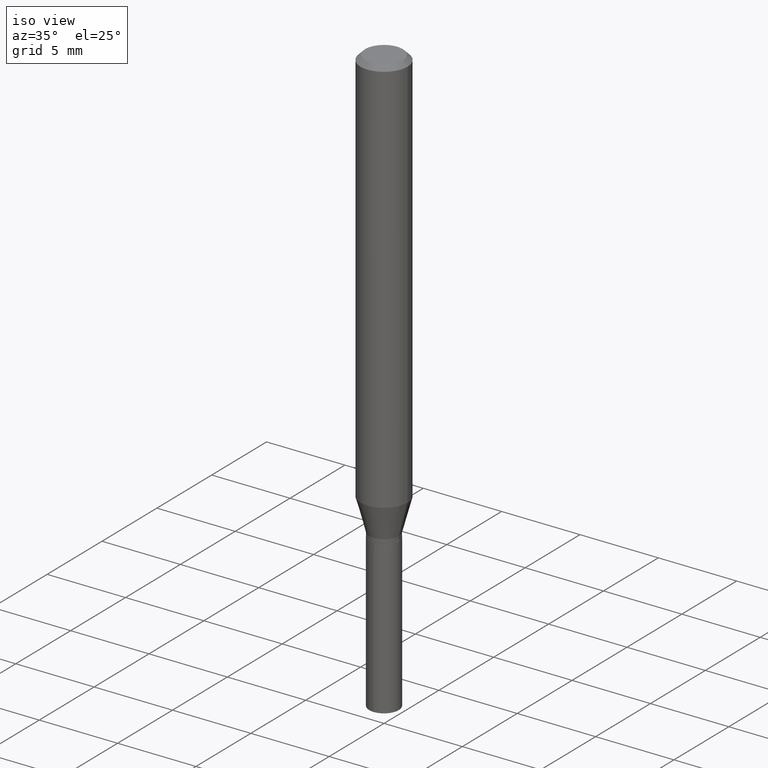
[diagram: clean part render]
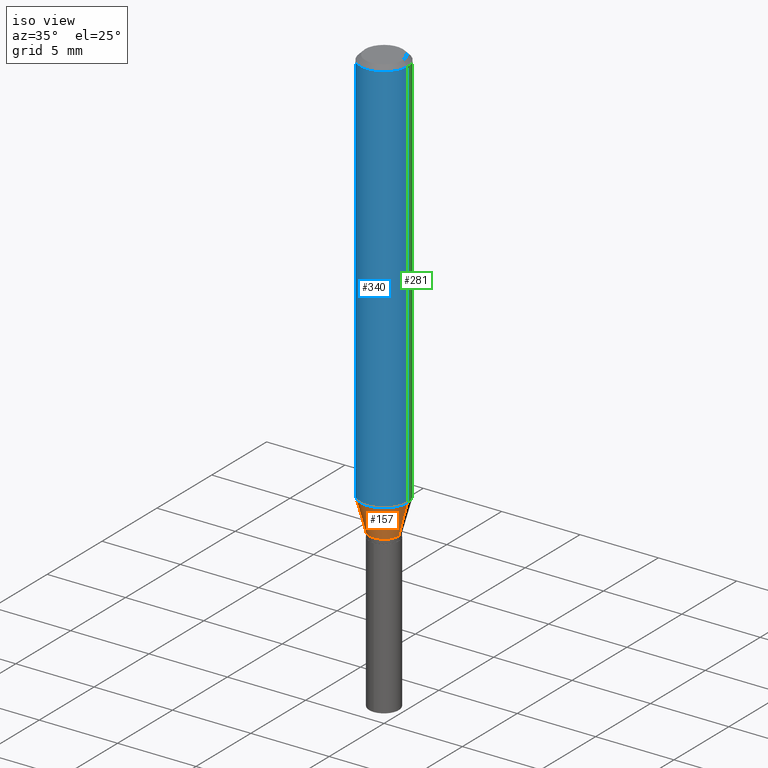
[diagram: same view with three faces highlighted in distinct colors, each labeled with its STEP entity id]
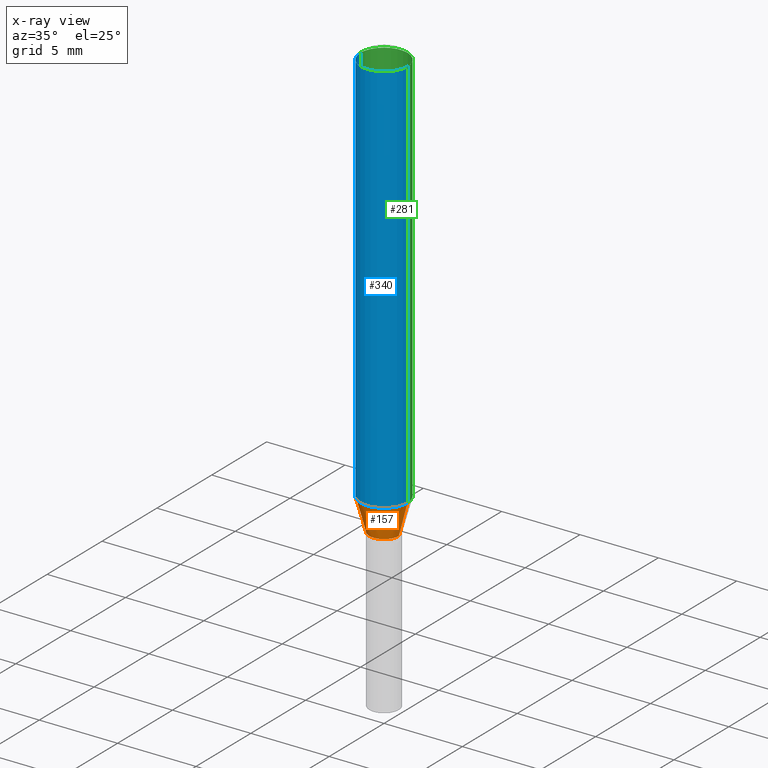
[diagram: x-ray of the same camera — body ghosted, the three highlighted faces saturated]
A machine part, iso view with three faces highlighted in distinct colors.
The next image is the same camera in x-ray (body ghosted, the three faces saturated) — at least one of them is partly hidden behind the body in this view.
Their STEP definitions:

[orange] entity #157 — the highlighted conical surface has half-angle 15 deg.
#6 = VECTOR ( 'NONE', #11, 39.37007874015748854 ) ;
#9 = CARTESIAN_POINT ( 'NONE',  ( -0.03719999999999999696, -3.517999836666022170E-15, -1.083299999999999930 ) ) ;
#11 = DIRECTION ( 'NONE',  ( -0.2588190451025212391, 5.211531920934549464E-15, 0.9659258262890679791 ) ) ;
#13 = CARTESIAN_POINT ( 'NONE',  ( 0.03719999999999999696, -4.042087945978708713E-15, -1.083299999999999930 ) ) ;
#15 = AXIS2_PLACEMENT_3D ( 'NONE', #268, #205, #431 ) ;
#28 = FACE_OUTER_BOUND ( 'NONE', #394, .T. ) ;
#50 = DIRECTION ( 'NONE',  ( -2.445468806185136597E-29, 3.491481338843145583E-15, 1.000000000000000000 ) ) ;
#51 = CONICAL_SURFACE ( 'NONE', #146, 0.03719999999999999696, 0.2617993877991499629 ) ;
#104 = EDGE_CURVE ( 'NONE', #416, #359, #442, .T. ) ;
#106 = VERTEX_POINT ( 'NONE', #13 ) ;
#146 = AXIS2_PLACEMENT_3D ( 'NONE', #169, #219, #376 ) ;
#153 = VERTEX_POINT ( 'NONE', #213 ) ;
#157 = ADVANCED_FACE ( 'NONE', ( #28 ), #51, .T. ) ;
#162 = ORIENTED_EDGE ( 'NONE', *, *, #386, .T. ) ;
#169 = CARTESIAN_POINT ( 'NONE',  ( 2.649176357740358198E-29, -3.782321734368779516E-15, -1.083299999999999930 ) ) ;
#187 = ORIENTED_EDGE ( 'NONE', *, *, #378, .F. ) ;
#195 = LINE ( 'NONE', #9, #6 ) ;
#205 = DIRECTION ( 'NONE',  ( -2.445468806185136597E-29, 3.491481338843145583E-15, 1.000000000000000000 ) ) ;
#213 = CARTESIAN_POINT ( 'NONE',  ( -0.03719999999999999696, -3.536679261828832652E-15, -1.083299999999999930 ) ) ;
#219 = DIRECTION ( 'NONE',  ( -2.445468806185136597E-29, 3.491481338843145583E-15, 1.000000000000000000 ) ) ;
#230 = CIRCLE ( 'NONE', #277, 0.03719999999999999696 ) ;
#249 = ORIENTED_EDGE ( 'NONE', *, *, #426, .T. ) ;
#251 = CARTESIAN_POINT ( 'NONE',  ( 0.05905000000000011628, -3.909951751843382594E-15, -1.001754689854619684 ) ) ;
#266 = VECTOR ( 'NONE', #315, 39.37007874015748854 ) ;
#268 = CARTESIAN_POINT ( 'NONE',  ( 2.449759845489138427E-29, -3.497607805726007280E-15, -1.001754689854619684 ) ) ;
#272 = DIRECTION ( 'NONE',  ( 1.000000000000000000, -6.982962677686265133E-15, 0.000000000000000000 ) ) ;
#277 = AXIS2_PLACEMENT_3D ( 'NONE', #278, #50, #272 ) ;
#278 = CARTESIAN_POINT ( 'NONE',  ( 2.649176357740358198E-29, -3.782321734368779516E-15, -1.083299999999999930 ) ) ;
#308 = CARTESIAN_POINT ( 'NONE',  ( 0.03719999999999999696, -4.042087945978708713E-15, -1.083299999999999930 ) ) ;
#315 = DIRECTION ( 'NONE',  ( 0.2588190451025212391, 1.565188264969622362E-15, 0.9659258262890679791 ) ) ;
#359 = VERTEX_POINT ( 'NONE', #251 ) ;
#376 = DIRECTION ( 'NONE',  ( 1.000000000000000000, -6.982962677686265133E-15, 0.000000000000000000 ) ) ;
#378 = EDGE_CURVE ( 'NONE', #153, #416, #195, .T. ) ;
#386 = EDGE_CURVE ( 'NONE', #106, #359, #469, .T. ) ;
#388 = ORIENTED_EDGE ( 'NONE', *, *, #104, .F. ) ;
#394 = EDGE_LOOP ( 'NONE', ( #187, #249, #162, #388 ) ) ;
#416 = VERTEX_POINT ( 'NONE', #464 ) ;
#426 = EDGE_CURVE ( 'NONE', #153, #106, #230, .T. ) ;
#431 = DIRECTION ( 'NONE',  ( 1.000000000000000000, -6.982962677686266711E-15, 0.000000000000000000 ) ) ;
#442 = CIRCLE ( 'NONE', #15, 0.05905000000000011628 ) ;
#464 = CARTESIAN_POINT ( 'NONE',  ( -0.05905000000000011628, -3.078032320259667392E-15, -1.001754689854619684 ) ) ;
#469 = LINE ( 'NONE', #308, #266 ) ;

[blue] entity #340 — the highlighted cylindrical surface (edge-blend (fillet) strip) has radius 1.4999 mm, axis along (-0, 0, 1).
#5 = DIRECTION ( 'NONE',  ( 1.000000000000000000, -6.982962677686266711E-15, 4.876176775795935793E-29 ) ) ;
#15 = AXIS2_PLACEMENT_3D ( 'NONE', #268, #205, #431 ) ;
#22 = AXIS2_PLACEMENT_3D ( 'NONE', #472, #368, #135 ) ;
#26 = CARTESIAN_POINT ( 'NONE',  ( -0.05904999999999999832, -1.349845614702532222E-15, -0.01181000000000006871 ) ) ;
#40 = CYLINDRICAL_SURFACE ( 'NONE', #311, 0.05905000000000006077 ) ;
#56 = EDGE_LOOP ( 'NONE', ( #382, #428, #117, #471 ) ) ;
#97 = DIRECTION ( 'NONE',  ( -2.445468806185136877E-29, 3.491481338843145188E-15, 1.000000000000000000 ) ) ;
#103 = DIRECTION ( 'NONE',  ( -2.445468806185136597E-29, 3.491481338843145583E-15, 1.000000000000000000 ) ) ;
#104 = EDGE_CURVE ( 'NONE', #416, #359, #442, .T. ) ;
#117 = ORIENTED_EDGE ( 'NONE', *, *, #402, .T. ) ;
#135 = DIRECTION ( 'NONE',  ( 1.000000000000000000, -6.982962677686266711E-15, 0.000000000000000000 ) ) ;
#137 = EDGE_CURVE ( 'NONE', #473, #393, #475, .T. ) ;
#140 = VECTOR ( 'NONE', #274, 39.37007874015748143 ) ;
#142 = EDGE_CURVE ( 'NONE', #416, #473, #168, .T. ) ;
#168 = LINE ( 'NONE', #290, #246 ) ;
#181 = CARTESIAN_POINT ( 'NONE',  ( 0.000000000000000000, 0.000000000000000000, 0.000000000000000000 ) ) ;
#203 = CARTESIAN_POINT ( 'NONE',  ( 0.05905000000000006077, -4.123439461173744764E-16, 2.879382386107503023E-30 ) ) ;
#205 = DIRECTION ( 'NONE',  ( -2.445468806185136597E-29, 3.491481338843145583E-15, 1.000000000000000000 ) ) ;
#206 = LINE ( 'NONE', #203, #140 ) ;
#246 = VECTOR ( 'NONE', #97, 39.37007874015748143 ) ;
#251 = CARTESIAN_POINT ( 'NONE',  ( 0.05905000000000011628, -3.909951751843382594E-15, -1.001754689854619684 ) ) ;
#268 = CARTESIAN_POINT ( 'NONE',  ( 2.449759845489138427E-29, -3.497607805726007280E-15, -1.001754689854619684 ) ) ;
#274 = DIRECTION ( 'NONE',  ( -2.445468806185136877E-29, 3.491481338843145188E-15, 1.000000000000000000 ) ) ;
#290 = CARTESIAN_POINT ( 'NONE',  ( -0.05905000000000006077, 4.195754854663395916E-16, -2.904631170795524694E-30 ) ) ;
#311 = AXIS2_PLACEMENT_3D ( 'NONE', #181, #103, #5 ) ;
#340 = ADVANCED_FACE ( 'NONE', ( #383 ), #40, .T. ) ;
#350 = CARTESIAN_POINT ( 'NONE',  ( 0.05904999999999999832, -4.535783407291118600E-16, -0.01181000000000006871 ) ) ;
#359 = VERTEX_POINT ( 'NONE', #251 ) ;
#368 = DIRECTION ( 'NONE',  ( -2.445468806185136597E-29, 3.491481338843145583E-15, 1.000000000000000000 ) ) ;
#382 = ORIENTED_EDGE ( 'NONE', *, *, #142, .F. ) ;
#383 = FACE_OUTER_BOUND ( 'NONE', #56, .T. ) ;
#393 = VERTEX_POINT ( 'NONE', #350 ) ;
#402 = EDGE_CURVE ( 'NONE', #359, #393, #206, .T. ) ;
#416 = VERTEX_POINT ( 'NONE', #464 ) ;
#428 = ORIENTED_EDGE ( 'NONE', *, *, #104, .T. ) ;
#431 = DIRECTION ( 'NONE',  ( 1.000000000000000000, -6.982962677686266711E-15, 0.000000000000000000 ) ) ;
#442 = CIRCLE ( 'NONE', #15, 0.05905000000000011628 ) ;
#464 = CARTESIAN_POINT ( 'NONE',  ( -0.05905000000000011628, -3.078032320259667392E-15, -1.001754689854619684 ) ) ;
#471 = ORIENTED_EDGE ( 'NONE', *, *, #137, .F. ) ;
#472 = CARTESIAN_POINT ( 'NONE',  ( 2.888098660104663328E-31, -4.123439461173779030E-17, -0.01181000000000006871 ) ) ;
#473 = VERTEX_POINT ( 'NONE', #26 ) ;
#475 = CIRCLE ( 'NONE', #22, 0.05904999999999999832 ) ;

[green] entity #281 — the highlighted cylindrical surface (edge-blend (fillet) strip) has radius 1.4999 mm, axis along (-0, 0, 1).
#1 = CYLINDRICAL_SURFACE ( 'NONE', #427, 0.05905000000000006077 ) ;
#26 = CARTESIAN_POINT ( 'NONE',  ( -0.05904999999999999832, -1.349845614702532222E-15, -0.01181000000000006871 ) ) ;
#33 = EDGE_CURVE ( 'NONE', #359, #416, #284, .T. ) ;
#69 = ORIENTED_EDGE ( 'NONE', *, *, #470, .F. ) ;
#90 = AXIS2_PLACEMENT_3D ( 'NONE', #314, #152, #210 ) ;
#97 = DIRECTION ( 'NONE',  ( -2.445468806185136877E-29, 3.491481338843145188E-15, 1.000000000000000000 ) ) ;
#140 = VECTOR ( 'NONE', #274, 39.37007874015748143 ) ;
#142 = EDGE_CURVE ( 'NONE', #416, #473, #168, .T. ) ;
#152 = DIRECTION ( 'NONE',  ( -2.445468806185136597E-29, 3.491481338843145583E-15, 1.000000000000000000 ) ) ;
#168 = LINE ( 'NONE', #290, #246 ) ;
#185 = AXIS2_PLACEMENT_3D ( 'NONE', #344, #347, #192 ) ;
#192 = DIRECTION ( 'NONE',  ( 1.000000000000000000, -6.982962677686266711E-15, 0.000000000000000000 ) ) ;
#203 = CARTESIAN_POINT ( 'NONE',  ( 0.05905000000000006077, -4.123439461173744764E-16, 2.879382386107503023E-30 ) ) ;
#206 = LINE ( 'NONE', #203, #140 ) ;
#210 = DIRECTION ( 'NONE',  ( 1.000000000000000000, -6.982962677686266711E-15, 0.000000000000000000 ) ) ;
#246 = VECTOR ( 'NONE', #97, 39.37007874015748143 ) ;
#250 = CARTESIAN_POINT ( 'NONE',  ( 0.000000000000000000, 0.000000000000000000, 0.000000000000000000 ) ) ;
#251 = CARTESIAN_POINT ( 'NONE',  ( 0.05905000000000011628, -3.909951751843382594E-15, -1.001754689854619684 ) ) ;
#274 = DIRECTION ( 'NONE',  ( -2.445468806185136877E-29, 3.491481338843145188E-15, 1.000000000000000000 ) ) ;
#281 = ADVANCED_FACE ( 'NONE', ( #381 ), #1, .T. ) ;
#284 = CIRCLE ( 'NONE', #185, 0.05905000000000011628 ) ;
#290 = CARTESIAN_POINT ( 'NONE',  ( -0.05905000000000006077, 4.195754854663395916E-16, -2.904631170795524694E-30 ) ) ;
#296 = DIRECTION ( 'NONE',  ( -2.445468806185136597E-29, 3.491481338843145583E-15, 1.000000000000000000 ) ) ;
#298 = DIRECTION ( 'NONE',  ( 1.000000000000000000, -6.982962677686266711E-15, 4.876176775795935793E-29 ) ) ;
#314 = CARTESIAN_POINT ( 'NONE',  ( 2.888098660104663328E-31, -4.123439461173779030E-17, -0.01181000000000006871 ) ) ;
#336 = EDGE_LOOP ( 'NONE', ( #424, #351, #69, #398 ) ) ;
#344 = CARTESIAN_POINT ( 'NONE',  ( 2.449759845489138427E-29, -3.497607805726007280E-15, -1.001754689854619684 ) ) ;
#347 = DIRECTION ( 'NONE',  ( -2.445468806185136597E-29, 3.491481338843145583E-15, 1.000000000000000000 ) ) ;
#350 = CARTESIAN_POINT ( 'NONE',  ( 0.05904999999999999832, -4.535783407291118600E-16, -0.01181000000000006871 ) ) ;
#351 = ORIENTED_EDGE ( 'NONE', *, *, #142, .T. ) ;
#359 = VERTEX_POINT ( 'NONE', #251 ) ;
#366 = CIRCLE ( 'NONE', #90, 0.05904999999999999832 ) ;
#381 = FACE_OUTER_BOUND ( 'NONE', #336, .T. ) ;
#393 = VERTEX_POINT ( 'NONE', #350 ) ;
#398 = ORIENTED_EDGE ( 'NONE', *, *, #402, .F. ) ;
#402 = EDGE_CURVE ( 'NONE', #359, #393, #206, .T. ) ;
#416 = VERTEX_POINT ( 'NONE', #464 ) ;
#424 = ORIENTED_EDGE ( 'NONE', *, *, #33, .T. ) ;
#427 = AXIS2_PLACEMENT_3D ( 'NONE', #250, #296, #298 ) ;
#464 = CARTESIAN_POINT ( 'NONE',  ( -0.05905000000000011628, -3.078032320259667392E-15, -1.001754689854619684 ) ) ;
#470 = EDGE_CURVE ( 'NONE', #393, #473, #366, .T. ) ;
#473 = VERTEX_POINT ( 'NONE', #26 ) ;